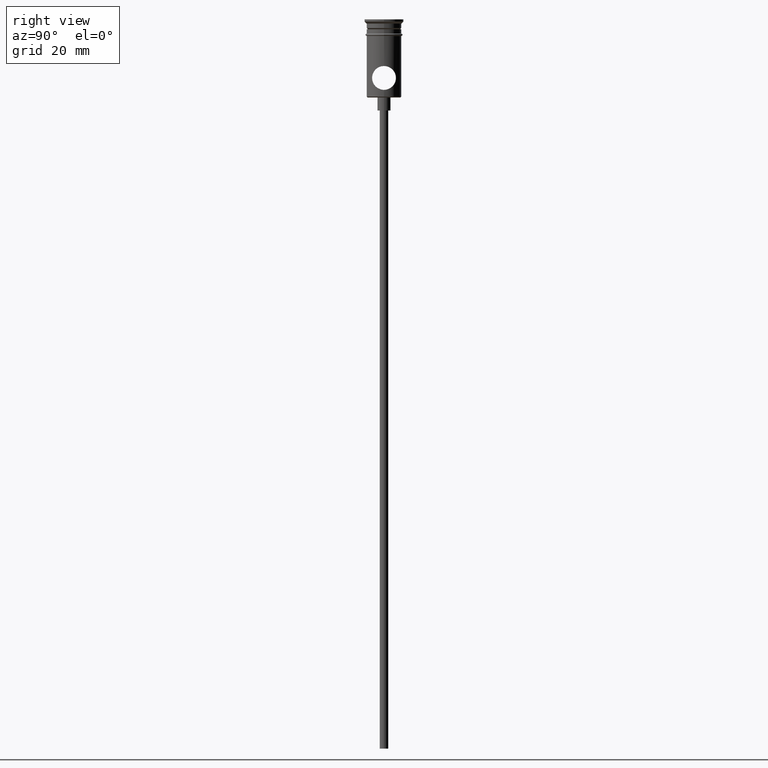
[diagram: clean part render]
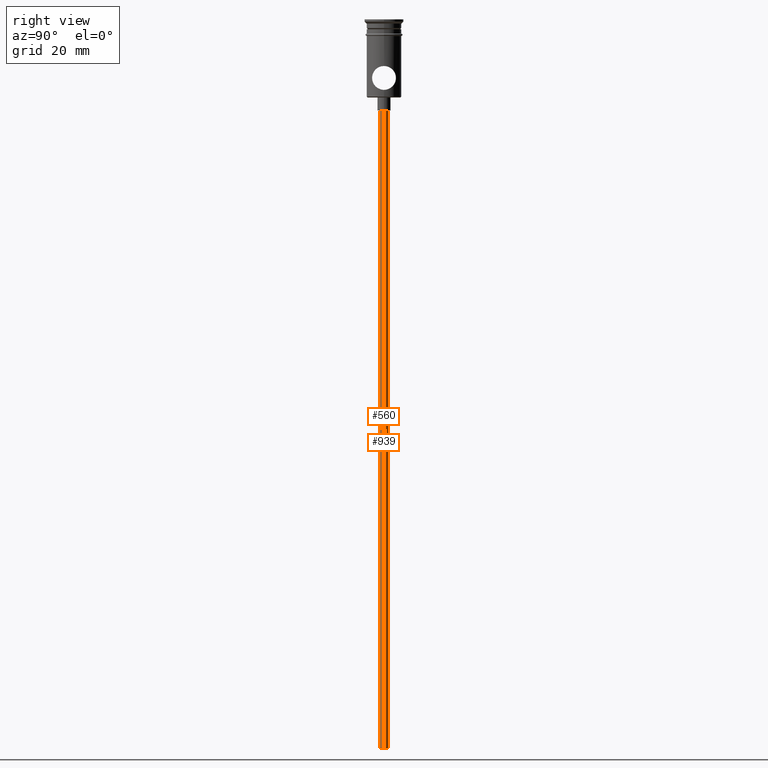
[diagram: same view with one multi-face feature highlighted, each face labeled with its STEP entity id]
A machine part, right view. The highlighted faces form ONE feature: a constant-radius fillet chain: 2 tangent blend faces with common blend radius 1 mm. The faces share edges in the B-rep.
Their STEP definitions:
[1] entity #560 (Cylinder):
#61 = DIRECTION ( 'NONE',  ( -1.000000000000000000, 0.000000000000000000, 0.000000000000000000 ) ) ;
#142 = ORIENTED_EDGE ( 'NONE', *, *, #786, .T. ) ;
#179 = VERTEX_POINT ( 'NONE', #1344 ) ;
#211 = CARTESIAN_POINT ( 'NONE',  ( 0.000000000000000000, 0.000000000000000000, -167.9999999999999716 ) ) ;
#259 = CARTESIAN_POINT ( 'NONE',  ( 0.9999999999999997780, 0.000000000000000000, -167.9999999999999716 ) ) ;
#318 = VECTOR ( 'NONE', #479, 1000.000000000000000 ) ;
#365 = AXIS2_PLACEMENT_3D ( 'NONE', #621, #1056, #61 ) ;
#426 = VECTOR ( 'NONE', #471, 1000.000000000000000 ) ;
#428 = CIRCLE ( 'NONE', #1257, 0.9999999999999997780 ) ;
#471 = DIRECTION ( 'NONE',  ( -0.000000000000000000, -0.000000000000000000, 1.000000000000000000 ) ) ;
#479 = DIRECTION ( 'NONE',  ( -0.000000000000000000, -0.000000000000000000, 1.000000000000000000 ) ) ;
#554 = FACE_OUTER_BOUND ( 'NONE', #1326, .T. ) ;
#560 = ADVANCED_FACE ( 'NONE', ( #554 ), #668, .T. ) ;
#595 = ORIENTED_EDGE ( 'NONE', *, *, #1179, .T. ) ;
#613 = AXIS2_PLACEMENT_3D ( 'NONE', #1106, #1223, #1115 ) ;
#621 = CARTESIAN_POINT ( 'NONE',  ( 0.000000000000000000, 0.000000000000000000, -20.99999999999999645 ) ) ;
#628 = DIRECTION ( 'NONE',  ( 0.000000000000000000, 0.000000000000000000, -1.000000000000000000 ) ) ;
#653 = CARTESIAN_POINT ( 'NONE',  ( 0.9999999999999997780, 0.000000000000000000, -20.99999999999999645 ) ) ;
#668 = CYLINDRICAL_SURFACE ( 'NONE', #613, 0.9999999999999997780 ) ;
#688 = VERTEX_POINT ( 'NONE', #728 ) ;
#704 = ORIENTED_EDGE ( 'NONE', *, *, #1394, .F. ) ;
#728 = CARTESIAN_POINT ( 'NONE',  ( -0.9999999999999997780, 1.224646799147352961E-16, -20.99999999999999645 ) ) ;
#747 = CIRCLE ( 'NONE', #365, 0.9999999999999997780 ) ;
#772 = VERTEX_POINT ( 'NONE', #1348 ) ;
#780 = ORIENTED_EDGE ( 'NONE', *, *, #957, .F. ) ;
#786 = EDGE_CURVE ( 'NONE', #179, #1211, #799, .T. ) ;
#799 = LINE ( 'NONE', #259, #318 ) ;
#861 = LINE ( 'NONE', #1234, #426 ) ;
#874 = DIRECTION ( 'NONE',  ( -1.000000000000000000, 0.000000000000000000, 0.000000000000000000 ) ) ;
#957 = EDGE_CURVE ( 'NONE', #772, #688, #861, .T. ) ;
#1056 = DIRECTION ( 'NONE',  ( 0.000000000000000000, 0.000000000000000000, -1.000000000000000000 ) ) ;
#1106 = CARTESIAN_POINT ( 'NONE',  ( 0.000000000000000000, 0.000000000000000000, -167.9999999999999716 ) ) ;
#1115 = DIRECTION ( 'NONE',  ( 1.000000000000000000, 0.000000000000000000, 0.000000000000000000 ) ) ;
#1179 = EDGE_CURVE ( 'NONE', #1211, #688, #747, .T. ) ;
#1211 = VERTEX_POINT ( 'NONE', #653 ) ;
#1223 = DIRECTION ( 'NONE',  ( -0.000000000000000000, -0.000000000000000000, 1.000000000000000000 ) ) ;
#1234 = CARTESIAN_POINT ( 'NONE',  ( -0.9999999999999997780, 1.224646799147352961E-16, -167.9999999999999716 ) ) ;
#1257 = AXIS2_PLACEMENT_3D ( 'NONE', #211, #628, #874 ) ;
#1326 = EDGE_LOOP ( 'NONE', ( #780, #704, #142, #595 ) ) ;
#1344 = CARTESIAN_POINT ( 'NONE',  ( 0.9999999999999997780, 0.000000000000000000, -167.9999999999999716 ) ) ;
#1348 = CARTESIAN_POINT ( 'NONE',  ( -0.9999999999999997780, 1.224646799147352961E-16, -167.9999999999999716 ) ) ;
#1394 = EDGE_CURVE ( 'NONE', #179, #772, #428, .T. ) ;
[2] entity #939 (Cylinder):
#67 = EDGE_LOOP ( 'NONE', ( #697, #371, #1134, #1105 ) ) ;
#171 = EDGE_CURVE ( 'NONE', #688, #1211, #263, .T. ) ;
#179 = VERTEX_POINT ( 'NONE', #1344 ) ;
#215 = DIRECTION ( 'NONE',  ( 0.000000000000000000, 0.000000000000000000, -1.000000000000000000 ) ) ;
#259 = CARTESIAN_POINT ( 'NONE',  ( 0.9999999999999997780, 0.000000000000000000, -167.9999999999999716 ) ) ;
#263 = CIRCLE ( 'NONE', #765, 0.9999999999999997780 ) ;
#318 = VECTOR ( 'NONE', #479, 1000.000000000000000 ) ;
#371 = ORIENTED_EDGE ( 'NONE', *, *, #957, .T. ) ;
#426 = VECTOR ( 'NONE', #471, 1000.000000000000000 ) ;
#447 = DIRECTION ( 'NONE',  ( -0.000000000000000000, -0.000000000000000000, 1.000000000000000000 ) ) ;
#471 = DIRECTION ( 'NONE',  ( -0.000000000000000000, -0.000000000000000000, 1.000000000000000000 ) ) ;
#479 = DIRECTION ( 'NONE',  ( -0.000000000000000000, -0.000000000000000000, 1.000000000000000000 ) ) ;
#559 = FACE_OUTER_BOUND ( 'NONE', #67, .T. ) ;
#653 = CARTESIAN_POINT ( 'NONE',  ( 0.9999999999999997780, 0.000000000000000000, -20.99999999999999645 ) ) ;
#662 = DIRECTION ( 'NONE',  ( -1.000000000000000000, 0.000000000000000000, 0.000000000000000000 ) ) ;
#678 = AXIS2_PLACEMENT_3D ( 'NONE', #1416, #447, #1389 ) ;
#688 = VERTEX_POINT ( 'NONE', #728 ) ;
#697 = ORIENTED_EDGE ( 'NONE', *, *, #851, .F. ) ;
#728 = CARTESIAN_POINT ( 'NONE',  ( -0.9999999999999997780, 1.224646799147352961E-16, -20.99999999999999645 ) ) ;
#765 = AXIS2_PLACEMENT_3D ( 'NONE', #783, #215, #662 ) ;
#772 = VERTEX_POINT ( 'NONE', #1348 ) ;
#783 = CARTESIAN_POINT ( 'NONE',  ( 0.000000000000000000, 0.000000000000000000, -20.99999999999999645 ) ) ;
#786 = EDGE_CURVE ( 'NONE', #179, #1211, #799, .T. ) ;
#799 = LINE ( 'NONE', #259, #318 ) ;
#822 = CARTESIAN_POINT ( 'NONE',  ( 0.000000000000000000, 0.000000000000000000, -167.9999999999999716 ) ) ;
#829 = DIRECTION ( 'NONE',  ( 0.000000000000000000, 0.000000000000000000, -1.000000000000000000 ) ) ;
#851 = EDGE_CURVE ( 'NONE', #772, #179, #1001, .T. ) ;
#861 = LINE ( 'NONE', #1234, #426 ) ;
#939 = ADVANCED_FACE ( 'NONE', ( #559 ), #990, .T. ) ;
#957 = EDGE_CURVE ( 'NONE', #772, #688, #861, .T. ) ;
#990 = CYLINDRICAL_SURFACE ( 'NONE', #678, 0.9999999999999997780 ) ;
#1001 = CIRCLE ( 'NONE', #1236, 0.9999999999999997780 ) ;
#1105 = ORIENTED_EDGE ( 'NONE', *, *, #786, .F. ) ;
#1134 = ORIENTED_EDGE ( 'NONE', *, *, #171, .T. ) ;
#1211 = VERTEX_POINT ( 'NONE', #653 ) ;
#1234 = CARTESIAN_POINT ( 'NONE',  ( -0.9999999999999997780, 1.224646799147352961E-16, -167.9999999999999716 ) ) ;
#1236 = AXIS2_PLACEMENT_3D ( 'NONE', #822, #829, #1263 ) ;
#1263 = DIRECTION ( 'NONE',  ( -1.000000000000000000, 0.000000000000000000, 0.000000000000000000 ) ) ;
#1344 = CARTESIAN_POINT ( 'NONE',  ( 0.9999999999999997780, 0.000000000000000000, -167.9999999999999716 ) ) ;
#1348 = CARTESIAN_POINT ( 'NONE',  ( -0.9999999999999997780, 1.224646799147352961E-16, -167.9999999999999716 ) ) ;
#1389 = DIRECTION ( 'NONE',  ( 1.000000000000000000, 0.000000000000000000, 0.000000000000000000 ) ) ;
#1416 = CARTESIAN_POINT ( 'NONE',  ( 0.000000000000000000, 0.000000000000000000, -167.9999999999999716 ) ) ;